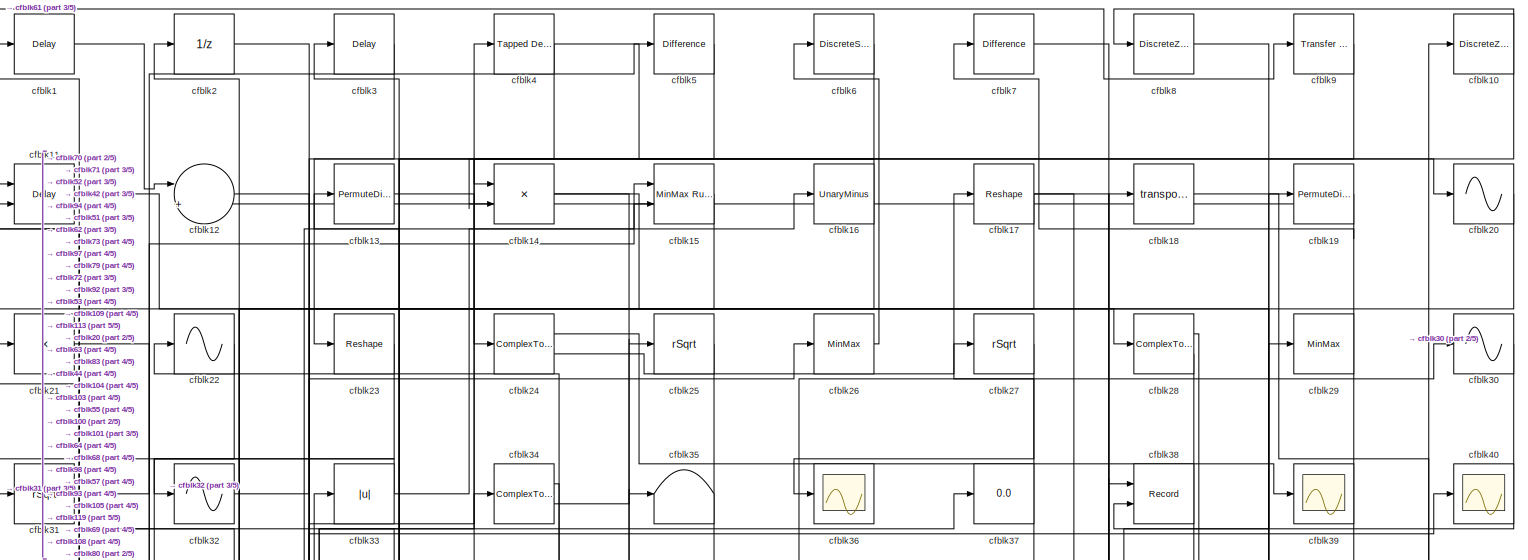
[diagram: root canvas - part 1/5, full width, top band]
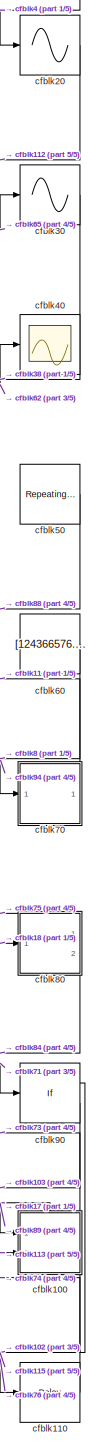
[diagram: root canvas - part 2/5, right side, full height]
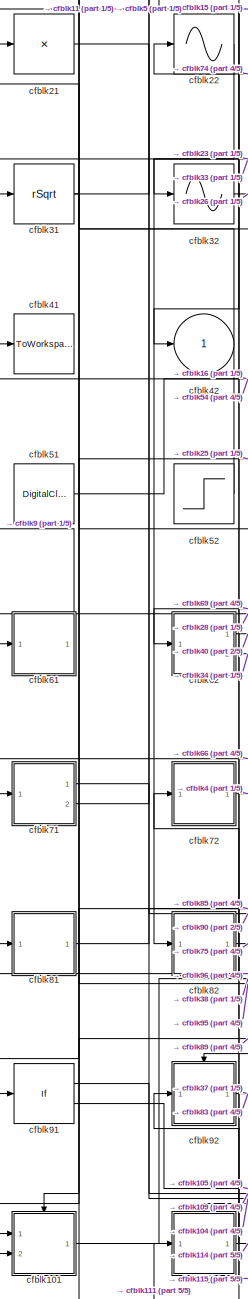
[diagram: root canvas - part 3/5, left side, full height]
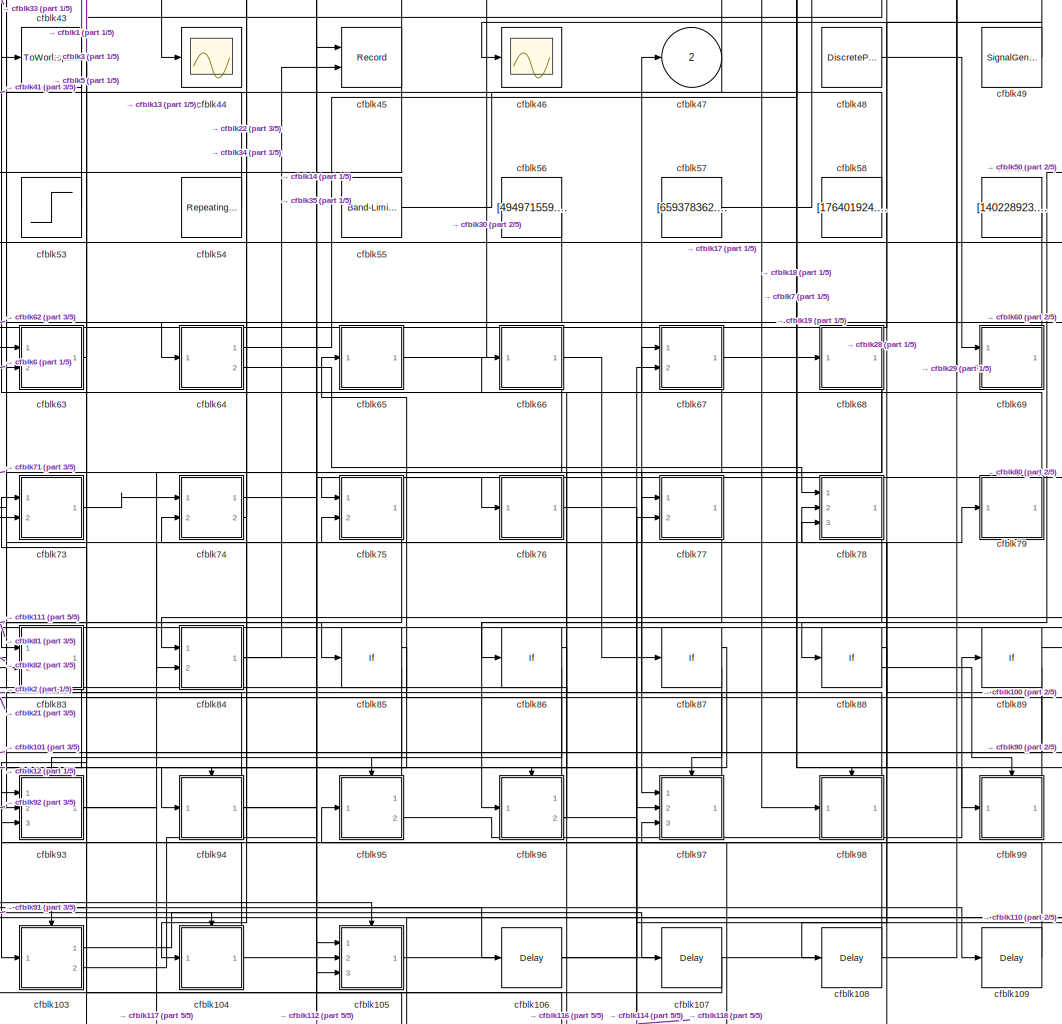
[diagram: root canvas - part 4/5, central region]
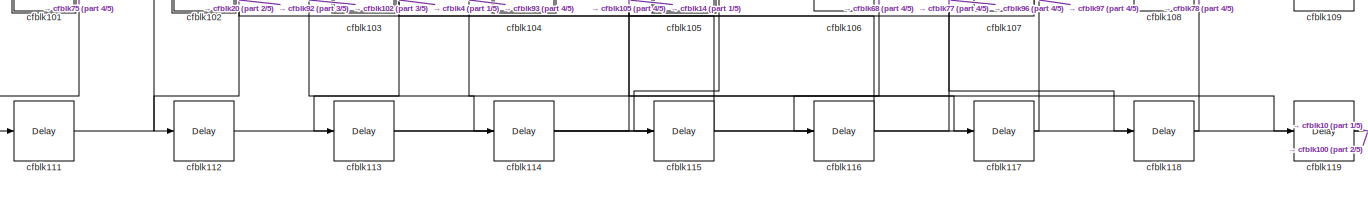
[diagram: root canvas - part 5/5, full width, bottom band]
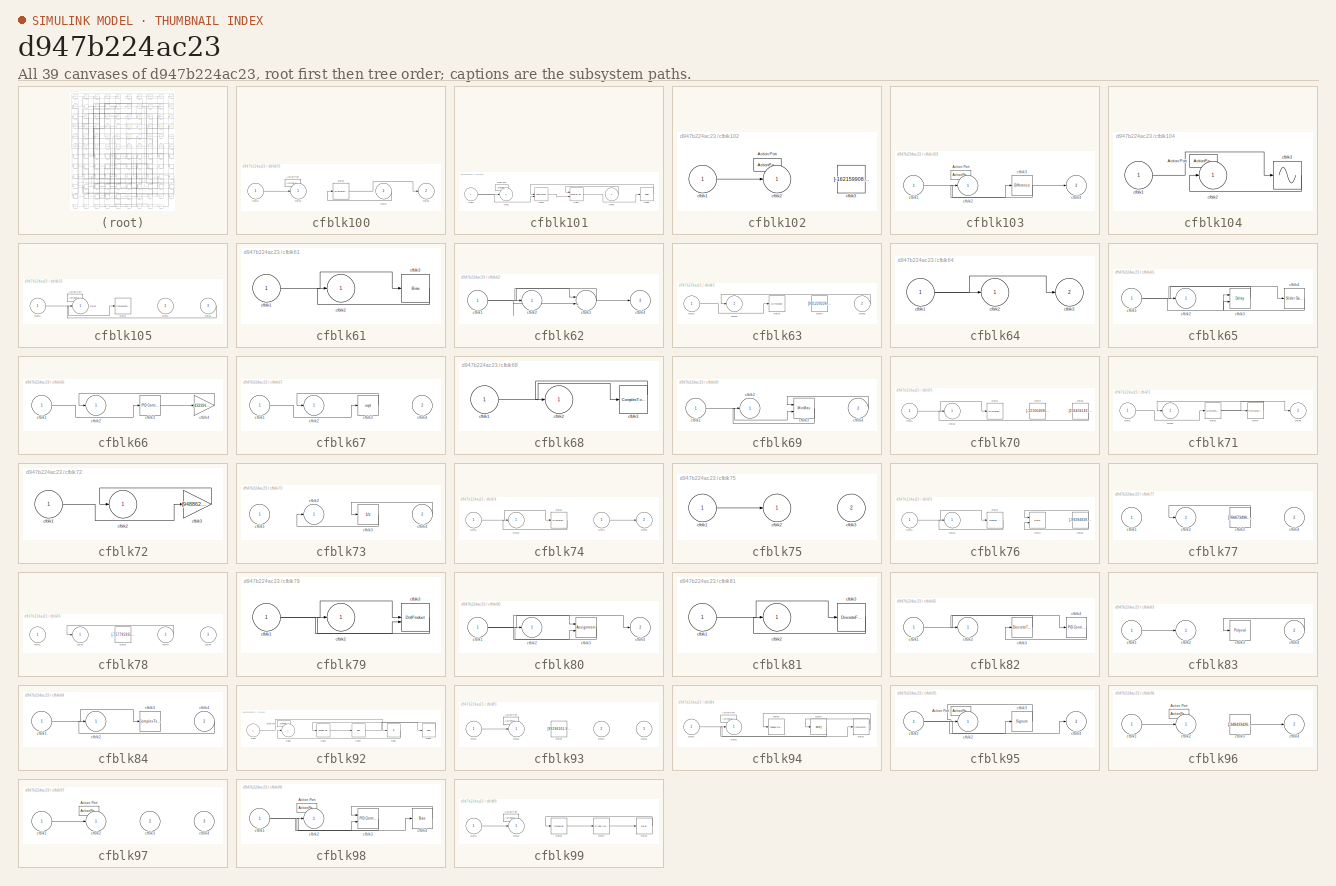
[diagram: thumbnail index - all 39 canvases of the model, root first then tree order]
MODEL slx_d947b224ac23
KIND model
CONFIG AbsTol = auto
CONFIG EnableMultiTasking = off
CONFIG FixedStep = auto
CONFIG MaxStep = auto
CONFIG MinStep = auto
CONFIG RelTol = 1e-3
CONFIG SampleTimeConstraint = Unconstrained
CONFIG SolverName = VariableStepAuto
CONFIG StartTime = 0.0
CONFIG StopTime = 10.0
BLOCK [Delay] cfblk1
  InputPortMap = u0
  Ports = [1, 1]
  SampleTime = 1
BLOCK [DiscreteZeroPole] cfblk10
  Gain = 1
  Poles = [0 0.5]
BLOCK [SubSystem] cfblk100
  Ports = [2, 2, 0, 0, 0, 0, 0, 1]
  RequestExecContextInheritance = off
  TreatAsAtomicUnit = on
BLOCK [ActionPort] cfblk100/Action Port
  ActionPortLabel = if(u1 >= 0)
BLOCK [Inport] cfblk100/cfblk1
BLOCK [Outport] cfblk100/cfblk2
BLOCK [DiscreteTransferFcn] cfblk100/cfblk3
  InputPortMap = u0
  Ports = [1, 1]
BLOCK [Inport] cfblk100/cfblk4
  Port = 2
BLOCK [Outport] cfblk100/cfblk5
  Port = 2
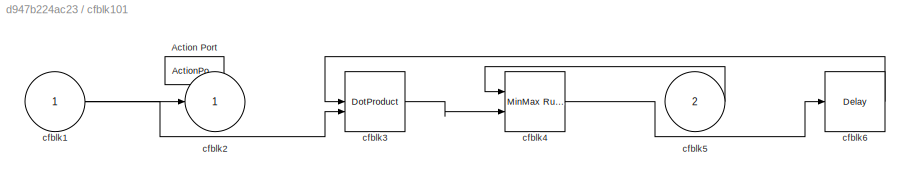
BLOCK [SubSystem] cfblk101
  Ports = [2, 1, 0, 0, 0, 0, 0, 1]
  RequestExecContextInheritance = off
  TreatAsAtomicUnit = on
BLOCK [ActionPort] cfblk101/Action Port
  ActionPortLabel = else
BLOCK [Inport] cfblk101/cfblk1
BLOCK [Outport] cfblk101/cfblk2
BLOCK [DotProduct] cfblk101/cfblk3
  OutDataTypeStr = Inherit: Inherit via internal rule
BLOCK [Reference] cfblk101/cfblk4  REF=simulink/Math
Operations/MinMax
Running
Resettable
  Ports = [2, 1]
  SourceBlock = simulink/Math\nOperations/MinMax\nRunning\nResettable
  SourceProductBaseCode = SL
  SourceType = MinMax Running Resettable
BLOCK [Inport] cfblk101/cfblk5
  Port = 2
BLOCK [Delay] cfblk101/cfblk6
  InputPortMap = u0
  Ports = [1, 1]
BLOCK [SubSystem] cfblk102
  Ports = [1, 1, 0, 0, 0, 0, 0, 1]
  RequestExecContextInheritance = off
  TreatAsAtomicUnit = on
BLOCK [ActionPort] cfblk102/Action Port
  ActionPortLabel = if(u1 >= 0)
BLOCK [Inport] cfblk102/cfblk1
BLOCK [Outport] cfblk102/cfblk2
BLOCK [Constant] cfblk102/cfblk3
  SampleTime = 1
  Value = [-162159908.679487]
BLOCK [SubSystem] cfblk103
  Ports = [1, 2, 0, 0, 0, 0, 0, 1]
  RequestExecContextInheritance = off
  TreatAsAtomicUnit = on
BLOCK [ActionPort] cfblk103/Action Port
  ActionPortLabel = else
BLOCK [Inport] cfblk103/cfblk1
BLOCK [Outport] cfblk103/cfblk2
BLOCK [Reference] cfblk103/cfblk3  REF=simulink/Discrete/Difference
  Ports = [1, 1]
  SourceBlock = simulink/Discrete/Difference
  SourceProductBaseCode = SL
  SourceType = Difference
BLOCK [Outport] cfblk103/cfblk4
  Port = 2
BLOCK [SubSystem] cfblk104
  Ports = [1, 1, 0, 0, 0, 0, 0, 1]
  RequestExecContextInheritance = off
  TreatAsAtomicUnit = on
BLOCK [ActionPort] cfblk104/Action Port
  ActionPortLabel = if(u1 >= 0)
BLOCK [Inport] cfblk104/cfblk1
BLOCK [Outport] cfblk104/cfblk2
BLOCK [Sin] cfblk104/cfblk3
  Ports = [1, 1]
  SampleTime = 0
  TimeSource = Use external signal
BLOCK [SubSystem] cfblk105
  Ports = [3, 1, 0, 0, 0, 0, 0, 1]
  RequestExecContextInheritance = off
  TreatAsAtomicUnit = on
BLOCK [ActionPort] cfblk105/Action Port
  ActionPortLabel = else
BLOCK [Inport] cfblk105/cfblk1
BLOCK [Outport] cfblk105/cfblk2
BLOCK [ComplexToRealImag] cfblk105/cfblk3
  Ports = [1, 2]
BLOCK [Inport] cfblk105/cfblk4
  Port = 2
BLOCK [Inport] cfblk105/cfblk5
  Port = 3
BLOCK [Delay] cfblk106
  InputPortMap = u0
  Ports = [1, 1]
  SampleTime = 1
BLOCK [Delay] cfblk107
  InputPortMap = u0
  Ports = [1, 1]
  SampleTime = 1
BLOCK [Delay] cfblk108
  InputPortMap = u0
  Ports = [1, 1]
  SampleTime = 1
BLOCK [Delay] cfblk109
  InputPortMap = u0
  Ports = [1, 1]
  SampleTime = 1
BLOCK [Delay] cfblk11
  DelayLengthSource = Input port
  InputPortMap = u0,p1
  Ports = [2, 1]
  SampleTime = 1
BLOCK [Delay] cfblk110
  InputPortMap = u0
  Ports = [1, 1]
  SampleTime = 1
BLOCK [Delay] cfblk111
  InputPortMap = u0
  Ports = [1, 1]
  SampleTime = 1
BLOCK [Delay] cfblk112
  InputPortMap = u0
  Ports = [1, 1]
  SampleTime = 1
BLOCK [Delay] cfblk113
  InputPortMap = u0
  Ports = [1, 1]
  SampleTime = 1
BLOCK [Delay] cfblk114
  InputPortMap = u0
  Ports = [1, 1]
  SampleTime = 1
BLOCK [Delay] cfblk115
  InputPortMap = u0
  Ports = [1, 1]
  SampleTime = 1
BLOCK [Delay] cfblk116
  InputPortMap = u0
  Ports = [1, 1]
  SampleTime = 1
BLOCK [Delay] cfblk117
  InputPortMap = u0
  Ports = [1, 1]
  SampleTime = 1
BLOCK [Delay] cfblk118
  InputPortMap = u0
  Ports = [1, 1]
  SampleTime = 1
BLOCK [Delay] cfblk119
  InputPortMap = u0
  Ports = [1, 1]
  SampleTime = 1
BLOCK [Sum] cfblk12
  Inputs = |++
  Ports = [2, 1]
BLOCK [PermuteDimensions] cfblk13
BLOCK [Product] cfblk14
  Ports = [2, 1]
BLOCK [Reference] cfblk15  REF=simulink/Math
Operations/MinMax
Running
Resettable
  Ports = [2, 1]
  SourceBlock = simulink/Math\nOperations/MinMax\nRunning\nResettable
  SourceProductBaseCode = SL
  SourceType = MinMax Running Resettable
BLOCK [UnaryMinus] cfblk16
BLOCK [Reshape] cfblk17
  Ports = [1, 1]
BLOCK [Math] cfblk18
  Operator = transpose
  Ports = [1, 1]
BLOCK [PermuteDimensions] cfblk19
BLOCK [UnitDelay] cfblk2
  HasFrameUpgradeWarning = on
BLOCK [Sin] cfblk20
  Ports = [1, 1]
  SampleTime = 0
  TimeSource = Use external signal
BLOCK [Product] cfblk21
  Inputs = *
  Ports = [1, 1]
BLOCK [Sin] cfblk22
  Ports = [1, 1]
  SampleTime = 0
  TimeSource = Use external signal
BLOCK [Reshape] cfblk23
  Ports = [1, 1]
BLOCK [ComplexToMagnitudeAngle] cfblk24
  Ports = [1, 2]
BLOCK [Sqrt] cfblk25
  AlgorithmType = Newton-Raphson
  Operator = rSqrt
BLOCK [MinMax] cfblk26
  Function = max
  Ports = [1, 1]
BLOCK [Sqrt] cfblk27
  AlgorithmType = Newton-Raphson
  Operator = rSqrt
BLOCK [ComplexToMagnitudeAngle] cfblk28
  Ports = [1, 2]
BLOCK [MinMax] cfblk29
  Ports = [1, 1]
BLOCK [Delay] cfblk3
  InputPortMap = u0
  Ports = [1, 1]
  SampleTime = 1
BLOCK [Sin] cfblk30
  Ports = [1, 1]
  SampleTime = 0
  TimeSource = Use external signal
BLOCK [Sqrt] cfblk31
  AlgorithmType = Newton-Raphson
  Operator = rSqrt
BLOCK [Sin] cfblk32
  Ports = [1, 1]
  SampleTime = 0
  TimeSource = Use external signal
BLOCK [Abs] cfblk33
  SaturateOnIntegerOverflow = off
BLOCK [ComplexToMagnitudeAngle] cfblk34
  Ports = [1, 2]
BLOCK [Terminator] cfblk35
BLOCK [Scope] cfblk36
  Floating = off
  NumInputPorts = 1
  Ports = [1]
BLOCK [Display] cfblk37
  Decimation = 1
  Ports = [1]
BLOCK [Record] cfblk38
  CompatibilityTag = XY
  FileSettingsInternal = {"entries":[{"content":{"excelSettings":{"content":{},"type":"Streamout.ExcelSettings"}},"type":"Streamout.FileSettingStorage","uuid":"11336398-6d51-4f3b-8d62-29296b9ae9b3"}],"packageUris":["http://schema.mathworks.com/mf0/streamout_blocks/R2020a"],"version":"1.0"}
  Layout = [1 1]
  Ports = [2]
  SignalsInternal = {"entries":[{"content":{"signals":[{"content":{"blockPath":["sampleModel235/cfblk38"],"channel":[],"dimensions":[1],"domain":"sampleModel235/cfblk38","lineColor":"#a2142f","plots":[1],"port":1,"sid":[""],"signalID":9263,"signalName":"cfblk101"},"type":"RecordBlkView.Signal","uuid":"63c3850a-55ea-46c7-aea2-e643b16b634b"},{"content":{"blockPath":["sampleModel235/cfblk38"],"channel":[],"dimensions":[...<+384ch>
  VisualizationBindings = {"xyplotplugin":{"info":[{"series":[{"bindingParametersList":[{"parameter":"X-Axis","signalID":9263,"signalName":"cfblk101"},{"parameter":"Y-Axis","signalID":9267,"signalName":"cfblk30"}],"seriesID":30601}],"subplotID":1}]}}
BLOCK [Scope] cfblk39
  Floating = off
  NumInputPorts = 1
  Ports = [1]
BLOCK [Reference] cfblk4  REF=simulink/Discrete/Tapped Delay
  Ports = [1, 1]
  SourceBlock = simulink/Discrete/Tapped Delay
  SourceProductBaseCode = SL
  SourceType = Tapped Delay Line
BLOCK [Scope] cfblk40
  Floating = off
  NumInputPorts = 1
  Ports = [1]
BLOCK [ToWorkspace] cfblk41
  FixptAsFi = on
  MaxDataPoints = inf
  Ports = [1]
  SampleTime = -1
  SaveFormat = Timeseries
  VariableName = vjgogzo
BLOCK [Outport] cfblk42
BLOCK [ToWorkspace] cfblk43
  FixptAsFi = on
  MaxDataPoints = inf
  Ports = [1]
  SampleTime = -1
  SaveFormat = Timeseries
  VariableName = marzvud
BLOCK [Scope] cfblk44
  Floating = off
  NumInputPorts = 1
  Ports = [1]
BLOCK [Record] cfblk45
  CompatibilityTag = XY
  FileSettingsInternal = {"entries":[{"content":{"excelSettings":{"content":{},"type":"Streamout.ExcelSettings"}},"type":"Streamout.FileSettingStorage","uuid":"599320f1-be0e-48c2-8f03-a9a55e95d92d"}],"packageUris":["http://schema.mathworks.com/mf0/streamout_blocks/R2020a"],"version":"1.0"}
  Layout = [1 1]
  Ports = [2]
  SignalsInternal = {"entries":[{"content":{"signals":[{"content":{"blockPath":["sampleModel235/cfblk45"],"channel":[],"dimensions":[1],"domain":"sampleModel235/cfblk45","lineColor":"#a2142f","plots":[1],"port":1,"sid":[""],"signalID":9271,"signalName":"cfblk84"},"type":"RecordBlkView.Signal","uuid":"f68cf5d5-64ff-4d75-8381-95ab246270b4"},{"content":{"blockPath":["sampleModel235/cfblk45"],"channel":[],"dimensions":[1...<+383ch>
  VisualizationBindings = {"xyplotplugin":{"info":[{"series":[{"bindingParametersList":[{"parameter":"X-Axis","signalID":9271,"signalName":"cfblk84"},{"parameter":"Y-Axis","signalID":9275,"signalName":"cfblk84"}],"seriesID":14377}],"subplotID":1}]}}
BLOCK [Scope] cfblk46
  Floating = off
  NumInputPorts = 1
  Ports = [1]
BLOCK [Outport] cfblk47
  Port = 2
BLOCK [DiscretePulseGenerator] cfblk48
  Amplitude = [993990205.841639]
  Period = [41434692.825303]
  PhaseDelay = [9.000000]
  Ports = [0, 1]
  PulseType = Time based
  PulseWidth = 5
BLOCK [SignalGenerator] cfblk49
  Amplitude = [-618305415.927345]
  Ports = [0, 1]
  WaveForm = sawtooth
BLOCK [Reference] cfblk5  REF=simulink/Discrete/Difference
  Ports = [1, 1]
  SourceBlock = simulink/Discrete/Difference
  SourceProductBaseCode = SL
  SourceType = Difference
BLOCK [Reference] cfblk50  REF=simulink/Sources/Repeating
Sequence
Interpolated
  Ports = [0, 1]
  SourceBlock = simulink/Sources/Repeating\nSequence\nInterpolated
  SourceProductBaseCode = SL
  SourceType = Repeating Sequence Interpolated
BLOCK [DigitalClock] cfblk51
BLOCK [Step] cfblk52
  After = [-744239558.640982]
  Before = [-898683375.767057]
  SampleTime = 0
  Time = [2.000000]
BLOCK [Step] cfblk53
  After = [255511984.528570]
  Before = [-372375495.152986]
  SampleTime = 0
  Time = [28.000000]
BLOCK [Reference] cfblk54  REF=simulink/Sources/Repeating
Sequence
  Ports = [0, 1]
  SourceBlock = simulink/Sources/Repeating\nSequence
  SourceProductBaseCode = SL
  SourceType = Repeating table
BLOCK [Reference] cfblk55  REF=simulink/Sources/Band-Limited
White Noise
  Ports = [0, 1]
  SourceBlock = simulink/Sources/Band-Limited\nWhite Noise
  SourceProductBaseCode = SL
  SourceType = Band-Limited White Noise.
BLOCK [Constant] cfblk56
  SampleTime = 1
  Value = [494971559.399289]
BLOCK [Constant] cfblk57
  SampleTime = 1
  Value = [659378362.848912]
BLOCK [Constant] cfblk58
  SampleTime = 1
  Value = [176401924.091886]
BLOCK [Constant] cfblk59
  SampleTime = 1
  Value = [140228923.076244]
BLOCK [DiscreteStateSpace] cfblk6
BLOCK [Constant] cfblk60
  SampleTime = 1
  Value = [124366576.874203]
BLOCK [SubSystem] cfblk61
  Ports = [1, 1]
  RequestExecContextInheritance = off
BLOCK [Inport] cfblk61/cfblk1
BLOCK [Outport] cfblk61/cfblk2
BLOCK [Bias] cfblk61/cfblk3
  Bias = [-453538198.164832]
  SaturateOnIntegerOverflow = off
BLOCK [SubSystem] cfblk62
  Ports = [1, 2]
  RequestExecContextInheritance = off
BLOCK [Inport] cfblk62/cfblk1
BLOCK [Outport] cfblk62/cfblk2
BLOCK [Sum] cfblk62/cfblk3
  Inputs = |++
  Ports = [2, 1]
BLOCK [Outport] cfblk62/cfblk4
  Port = 2
BLOCK [SubSystem] cfblk63
  Ports = [2, 1]
  RequestExecContextInheritance = off
BLOCK [Inport] cfblk63/cfblk1
BLOCK [Outport] cfblk63/cfblk2
BLOCK [Reference] cfblk63/cfblk3  REF=simulink/Discrete/Difference
  Ports = [1, 1]
  SourceBlock = simulink/Discrete/Difference
  SourceProductBaseCode = SL
  SourceType = Difference
BLOCK [Constant] cfblk63/cfblk4
  SampleTime = 1
  Value = [941229226.738042]
BLOCK [Inport] cfblk63/cfblk5
  Port = 2
BLOCK [SubSystem] cfblk64
  Ports = [1, 2]
  RequestExecContextInheritance = off
BLOCK [Inport] cfblk64/cfblk1
BLOCK [Outport] cfblk64/cfblk2
BLOCK [Outport] cfblk64/cfblk3
  Port = 2
BLOCK [SubSystem] cfblk65
  Ports = [1, 1]
  RequestExecContextInheritance = off
BLOCK [Inport] cfblk65/cfblk1
BLOCK [Outport] cfblk65/cfblk2
BLOCK [Delay] cfblk65/cfblk3
  DelayLengthSource = Input port
  InputPortMap = u0,p1
  Ports = [2, 1]
  SampleTime = 1
BLOCK [Reference] cfblk65/cfblk4  REF=simulink/Math
Operations/Slider
Gain
  Ports = [1, 1]
  SourceBlock = simulink/Math\nOperations/Slider\nGain
  SourceProductBaseCode = SL
  SourceType = Slider Gain
BLOCK [SubSystem] cfblk66
  Ports = [1, 1]
  RequestExecContextInheritance = off
BLOCK [Inport] cfblk66/cfblk1
BLOCK [Outport] cfblk66/cfblk2
BLOCK [Reference] cfblk66/cfblk3  REF=slpidlib/PID Controller
  Ports = [1, 1]
  SourceBlock = slpidlib/PID Controller
  SourceProductBaseCode = SL
  SourceType = PID 1dof
BLOCK [Gain] cfblk66/cfblk4
  Gain = [432391618.383563]
BLOCK [SubSystem] cfblk67
  Ports = [2, 1]
  RequestExecContextInheritance = off
BLOCK [Inport] cfblk67/cfblk1
BLOCK [Outport] cfblk67/cfblk2
BLOCK [Sqrt] cfblk67/cfblk3
BLOCK [Inport] cfblk67/cfblk4
  Port = 2
BLOCK [SubSystem] cfblk68
  Ports = [1, 1]
  RequestExecContextInheritance = off
BLOCK [Inport] cfblk68/cfblk1
BLOCK [Outport] cfblk68/cfblk2
BLOCK [ComplexToRealImag] cfblk68/cfblk3
  Ports = [1, 2]
BLOCK [SubSystem] cfblk69
  Ports = [2, 1]
  RequestExecContextInheritance = off
BLOCK [Inport] cfblk69/cfblk1
BLOCK [Outport] cfblk69/cfblk2
BLOCK [MinMax] cfblk69/cfblk3
  Inputs = 2
  Ports = [2, 1]
BLOCK [Inport] cfblk69/cfblk4
  Port = 2
BLOCK [Reference] cfblk7  REF=simulink/Discrete/Difference
  Ports = [1, 1]
  SourceBlock = simulink/Discrete/Difference
  SourceProductBaseCode = SL
  SourceType = Difference
BLOCK [SubSystem] cfblk70
  Ports = [1, 1]
  RequestExecContextInheritance = off
BLOCK [Inport] cfblk70/cfblk1
BLOCK [Outport] cfblk70/cfblk2
BLOCK [DiscreteZeroPole] cfblk70/cfblk3
  Gain = 1
  Poles = [0 0.5]
BLOCK [Constant] cfblk70/cfblk4
  SampleTime = 1
  Value = [-121664696.858403]
BLOCK [Constant] cfblk70/cfblk5
  SampleTime = 1
  Value = [236404182.223151]
BLOCK [SubSystem] cfblk71
  Ports = [1, 2]
  RequestExecContextInheritance = off
BLOCK [Inport] cfblk71/cfblk1
BLOCK [Outport] cfblk71/cfblk2
BLOCK [DiscreteStateSpace] cfblk71/cfblk3
BLOCK [PermuteDimensions] cfblk71/cfblk4
BLOCK [Outport] cfblk71/cfblk5
  Port = 2
BLOCK [SubSystem] cfblk72
  Ports = [1, 1]
  RequestExecContextInheritance = off
BLOCK [Inport] cfblk72/cfblk1
BLOCK [Outport] cfblk72/cfblk2
BLOCK [Gain] cfblk72/cfblk3
  Gain = [948862798.807821]
BLOCK [SubSystem] cfblk73
  Ports = [2, 1]
  RequestExecContextInheritance = off
BLOCK [Inport] cfblk73/cfblk1
BLOCK [Outport] cfblk73/cfblk2
BLOCK [UnitDelay] cfblk73/cfblk3
  HasFrameUpgradeWarning = on
BLOCK [Inport] cfblk73/cfblk4
  Port = 2
BLOCK [SubSystem] cfblk74
  Ports = [2, 2]
  RequestExecContextInheritance = off
BLOCK [Inport] cfblk74/cfblk1
BLOCK [Outport] cfblk74/cfblk2
BLOCK [DiscreteFilter] cfblk74/cfblk3
  InputPortMap = u0
  Ports = [1, 1]
  SampleTime = 1
BLOCK [Inport] cfblk74/cfblk4
  Port = 2
BLOCK [Outport] cfblk74/cfblk5
  Port = 2
BLOCK [SubSystem] cfblk75
  Ports = [2, 1]
  RequestExecContextInheritance = off
BLOCK [Inport] cfblk75/cfblk1
BLOCK [Outport] cfblk75/cfblk2
BLOCK [Inport] cfblk75/cfblk3
  Port = 2
BLOCK [SubSystem] cfblk76
  Ports = [1, 1]
  RequestExecContextInheritance = off
BLOCK [Inport] cfblk76/cfblk1
BLOCK [Outport] cfblk76/cfblk2
BLOCK [Reference] cfblk76/cfblk3  REF=simulink/Discrete/Transfer Fcn
Real Zero
  Ports = [1, 1]
  SourceBlock = simulink/Discrete/Transfer Fcn\nReal Zero
  SourceProductBaseCode = SL
  SourceType = Transfer Fcn Real Zero
BLOCK [Delay] cfblk76/cfblk4
  InputPortMap = u0,e6
  Ports = [2, 1]
  SampleTime = 1
  ShowEnablePort = on
BLOCK [Constant] cfblk76/cfblk5
  SampleTime = 1
  Value = [-99394838.353341]
BLOCK [SubSystem] cfblk77
  Ports = [2, 1]
  RequestExecContextInheritance = off
BLOCK [Inport] cfblk77/cfblk1
BLOCK [Outport] cfblk77/cfblk2
BLOCK [Constant] cfblk77/cfblk3
  SampleTime = 1
  Value = [766673496.063240]
BLOCK [Inport] cfblk77/cfblk4
  Port = 2
BLOCK [SubSystem] cfblk78
  Ports = [3, 1]
  RequestExecContextInheritance = off
BLOCK [Inport] cfblk78/cfblk1
BLOCK [Outport] cfblk78/cfblk2
BLOCK [Constant] cfblk78/cfblk3
  SampleTime = 1
  Value = [-757795935.160757]
BLOCK [Inport] cfblk78/cfblk4
  Port = 2
BLOCK [Inport] cfblk78/cfblk5
  Port = 3
BLOCK [SubSystem] cfblk79
  Ports = [1, 1]
  RequestExecContextInheritance = off
BLOCK [Inport] cfblk79/cfblk1
BLOCK [Outport] cfblk79/cfblk2
BLOCK [DotProduct] cfblk79/cfblk3
  OutDataTypeStr = Inherit: Inherit via internal rule
BLOCK [DiscreteZeroPole] cfblk8
  Gain = 1
  Poles = [0 0.5]
BLOCK [SubSystem] cfblk80
  Ports = [1, 2]
  RequestExecContextInheritance = off
BLOCK [Inport] cfblk80/cfblk1
BLOCK [Outport] cfblk80/cfblk2
BLOCK [Assignment] cfblk80/cfblk3
  DiagnosticForDimensions = Warning
  IndexOptions = Index vector (dialog)
  Indices = 1
  OutputSizes = 1
  Ports = [2, 1]
BLOCK [Outport] cfblk80/cfblk4
  Port = 2
BLOCK [SubSystem] cfblk81
  Ports = [1, 1]
  RequestExecContextInheritance = off
BLOCK [Inport] cfblk81/cfblk1
BLOCK [Outport] cfblk81/cfblk2
BLOCK [DiscreteFir] cfblk81/cfblk3
  InputPortMap = u0
  OutputPortMap = o0
  Ports = [1, 1]
  SampleTime = 1
BLOCK [SubSystem] cfblk82
  Ports = [1, 1]
  RequestExecContextInheritance = off
BLOCK [Inport] cfblk82/cfblk1
BLOCK [Outport] cfblk82/cfblk2
BLOCK [DiscreteTransferFcn] cfblk82/cfblk3
  InputPortMap = u0
  Ports = [1, 1]
  SampleTime = 1
BLOCK [Reference] cfblk82/cfblk4  REF=slpidlib/PID Controller
  Ports = [1, 1]
  SourceBlock = slpidlib/PID Controller
  SourceProductBaseCode = SL
  SourceType = PID 1dof
BLOCK [SubSystem] cfblk83
  Ports = [2, 1]
  RequestExecContextInheritance = off
BLOCK [Inport] cfblk83/cfblk1
BLOCK [Outport] cfblk83/cfblk2
BLOCK [Polyval] cfblk83/cfblk3
  Coefs = [ +2.081618890e-019, -1.441693666e-014, +4.719686976e-010, -8.536869453e-006, +1.621573104e-001, -8.087801117e+001 ]
BLOCK [Inport] cfblk83/cfblk4
  Port = 2
BLOCK [SubSystem] cfblk84
  Ports = [2, 1]
  RequestExecContextInheritance = off
BLOCK [Inport] cfblk84/cfblk1
BLOCK [Outport] cfblk84/cfblk2
BLOCK [ComplexToRealImag] cfblk84/cfblk3
  Ports = [1, 2]
BLOCK [Inport] cfblk84/cfblk4
  Port = 2
BLOCK [If] cfblk85
  IfExpression = u1 >= 0
  Ports = [1, 2]
  SampleTime = 1
BLOCK [If] cfblk86
  IfExpression = u1 >= 0
  Ports = [1, 2]
  SampleTime = 1
BLOCK [If] cfblk87
  IfExpression = u1 >= 0
  Ports = [1, 2]
  SampleTime = 1
BLOCK [If] cfblk88
  IfExpression = u1 >= 0
  Ports = [1, 2]
  SampleTime = 1
BLOCK [If] cfblk89
  IfExpression = u1 >= 0
  Ports = [1, 2]
  SampleTime = 1
BLOCK [Reference] cfblk9  REF=simulink/Discrete/Transfer Fcn
First Order
  Ports = [1, 1]
  SourceBlock = simulink/Discrete/Transfer Fcn\nFirst Order
  SourceProductBaseCode = SL
  SourceType = First Order Transfer Fcn
BLOCK [If] cfblk90
  IfExpression = u1 >= 0
  Ports = [1, 2]
  SampleTime = 1
BLOCK [If] cfblk91
  IfExpression = u1 >= 0
  Ports = [1, 2]
  SampleTime = 1
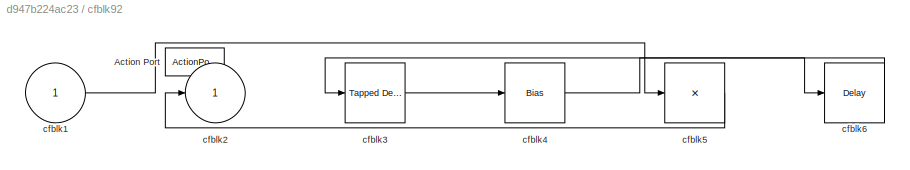
BLOCK [SubSystem] cfblk92
  Ports = [1, 1, 0, 0, 0, 0, 0, 1]
  RequestExecContextInheritance = off
  TreatAsAtomicUnit = on
BLOCK [ActionPort] cfblk92/Action Port
  ActionPortLabel = if(u1 >= 0)
BLOCK [Inport] cfblk92/cfblk1
BLOCK [Outport] cfblk92/cfblk2
BLOCK [Reference] cfblk92/cfblk3  REF=simulink/Discrete/Tapped Delay
  Ports = [1, 1]
  SourceBlock = simulink/Discrete/Tapped Delay
  SourceProductBaseCode = SL
  SourceType = Tapped Delay Line
BLOCK [Bias] cfblk92/cfblk4
  Bias = [972147291.551141]
  SaturateOnIntegerOverflow = off
BLOCK [Product] cfblk92/cfblk5
  Inputs = *
  Ports = [1, 1]
BLOCK [Delay] cfblk92/cfblk6
  InputPortMap = u0
  Ports = [1, 1]
BLOCK [SubSystem] cfblk93
  Ports = [3, 1, 0, 0, 0, 0, 0, 1]
  RequestExecContextInheritance = off
  TreatAsAtomicUnit = on
BLOCK [ActionPort] cfblk93/Action Port
  ActionPortLabel = else
BLOCK [Inport] cfblk93/cfblk1
BLOCK [Outport] cfblk93/cfblk2
BLOCK [Constant] cfblk93/cfblk3
  SampleTime = 1
  Value = [99196101.913529]
BLOCK [Inport] cfblk93/cfblk4
  Port = 2
BLOCK [Inport] cfblk93/cfblk5
  Port = 3
BLOCK [SubSystem] cfblk94
  Ports = [1, 1, 0, 0, 0, 0, 0, 1]
  RequestExecContextInheritance = off
  TreatAsAtomicUnit = on
BLOCK [ActionPort] cfblk94/Action Port
  ActionPortLabel = if(u1 >= 0)
BLOCK [Inport] cfblk94/cfblk1
BLOCK [Outport] cfblk94/cfblk2
BLOCK [Reference] cfblk94/cfblk3  REF=simulink/Discrete/Tapped Delay
  Ports = [1, 1]
  SourceBlock = simulink/Discrete/Tapped Delay
  SourceProductBaseCode = SL
  SourceType = Tapped Delay Line
BLOCK [Math] cfblk94/cfblk4
  Operator = conj
  Ports = [1, 1]
BLOCK [ComplexToMagnitudeAngle] cfblk94/cfblk5
  Ports = [1, 2]
BLOCK [SubSystem] cfblk95
  Ports = [1, 2, 0, 0, 0, 0, 0, 1]
  RequestExecContextInheritance = off
  TreatAsAtomicUnit = on
BLOCK [ActionPort] cfblk95/Action Port
  ActionPortLabel = else
BLOCK [Inport] cfblk95/cfblk1
BLOCK [Outport] cfblk95/cfblk2
BLOCK [Signum] cfblk95/cfblk3
BLOCK [Outport] cfblk95/cfblk4
  Port = 2
BLOCK [SubSystem] cfblk96
  Ports = [1, 2, 0, 0, 0, 0, 0, 1]
  RequestExecContextInheritance = off
  TreatAsAtomicUnit = on
BLOCK [ActionPort] cfblk96/Action Port
  ActionPortLabel = if(u1 >= 0)
BLOCK [Inport] cfblk96/cfblk1
BLOCK [Outport] cfblk96/cfblk2
BLOCK [Constant] cfblk96/cfblk3
  SampleTime = 1
  Value = [-348433426.404080]
BLOCK [Outport] cfblk96/cfblk4
  Port = 2
BLOCK [SubSystem] cfblk97
  Ports = [3, 1, 0, 0, 0, 0, 0, 1]
  RequestExecContextInheritance = off
  TreatAsAtomicUnit = on
BLOCK [ActionPort] cfblk97/Action Port
  ActionPortLabel = else
BLOCK [Inport] cfblk97/cfblk1
BLOCK [Outport] cfblk97/cfblk2
BLOCK [Inport] cfblk97/cfblk3
  Port = 2
BLOCK [Inport] cfblk97/cfblk4
  Port = 3
BLOCK [SubSystem] cfblk98
  Ports = [1, 1, 0, 0, 0, 0, 0, 1]
  RequestExecContextInheritance = off
  TreatAsAtomicUnit = on
BLOCK [ActionPort] cfblk98/Action Port
  ActionPortLabel = if(u1 >= 0)
BLOCK [Inport] cfblk98/cfblk1
BLOCK [Outport] cfblk98/cfblk2
BLOCK [Reference] cfblk98/cfblk3  REF=slpidlib/PID Controller (2DOF)
  Ports = [2, 1]
  SourceBlock = slpidlib/PID Controller (2DOF)
  SourceProductBaseCode = SL
  SourceType = PID 2dof
BLOCK [Bias] cfblk98/cfblk4
  Bias = [-92562294.972788]
  SaturateOnIntegerOverflow = off
BLOCK [SubSystem] cfblk99
  Ports = [1, 1, 0, 0, 0, 0, 0, 1]
  RequestExecContextInheritance = off
  TreatAsAtomicUnit = on
BLOCK [ActionPort] cfblk99/Action Port
  ActionPortLabel = else
BLOCK [Inport] cfblk99/cfblk1
BLOCK [Outport] cfblk99/cfblk2
BLOCK [Rounding] cfblk99/cfblk3
BLOCK [Reference] cfblk99/cfblk4  REF=simulink/Math
Operations/Slider
Gain
  Ports = [1, 1]
  SourceBlock = simulink/Math\nOperations/Slider\nGain
  SourceProductBaseCode = SL
  SourceType = Slider Gain
BLOCK [Delay] cfblk99/cfblk5
  InputPortMap = u0
  Ports = [1, 1]
LINE cfblk100/cfblk1:1 -> cfblk100/cfblk2:1
LINE cfblk100/cfblk3:1 -> cfblk100/cfblk5:1
LINE cfblk100/cfblk4:1 -> cfblk100/cfblk3:1
LINE cfblk100:1 -> cfblk73:1
LINE cfblk100:2 -> cfblk115:1
NET cfblk101/cfblk1:1 -> cfblk101/cfblk2:1, cfblk101/cfblk3:2
LINE cfblk101/cfblk3:1 -> cfblk101/cfblk4:2
LINE cfblk101/cfblk4:1 -> cfblk101/cfblk6:1
LINE cfblk101/cfblk5:1 -> cfblk101/cfblk4:1
LINE cfblk101/cfblk6:1 -> cfblk101/cfblk3:1
LINE cfblk101:1 -> cfblk38:1
LINE cfblk102/cfblk1:1 -> cfblk102/cfblk2:1
NET cfblk102:1 -> cfblk114:1, cfblk72:1
LINE cfblk103/cfblk1:1 -> cfblk103/cfblk3:1
NET cfblk103/cfblk3:1 -> cfblk103/cfblk2:1, cfblk103/cfblk4:1
LINE cfblk103:1 -> cfblk107:1
LINE cfblk103:2 -> cfblk35:1
LINE cfblk104/cfblk1:1 -> cfblk104/cfblk3:1
LINE cfblk104/cfblk3:1 -> cfblk104/cfblk2:1
NET cfblk104:1 -> cfblk67:1, cfblk93:2
LINE cfblk105/cfblk1:1 -> cfblk105/cfblk3:1
LINE cfblk105/cfblk5:1 -> cfblk105/cfblk2:1
LINE cfblk105:1 -> cfblk29:1
LINE cfblk106:1 -> cfblk67:2
LINE cfblk107:1 -> cfblk105:2
LINE cfblk108:1 -> cfblk95:1
LINE cfblk109:1 -> cfblk3:1
NET cfblk10:1 -> cfblk14:2, cfblk8:1
LINE cfblk110:1 -> cfblk74:2
LINE cfblk111:1 -> cfblk102:1
LINE cfblk112:1 -> cfblk105:1
LINE cfblk113:1 -> cfblk100:2
LINE cfblk114:1 -> cfblk77:2
LINE cfblk115:1 -> cfblk92:1
LINE cfblk116:1 -> cfblk93:3
LINE cfblk117:1 -> cfblk97:3
LINE cfblk118:1 -> cfblk78:3
LINE cfblk119:1 -> cfblk10:1
LINE cfblk11:1 -> cfblk28:1
LINE cfblk12:1 -> cfblk97:2
LINE cfblk13:1 -> cfblk44:1
NET cfblk14:1 -> cfblk119:1, cfblk69:2
LINE cfblk15:1 -> cfblk42:1
NET cfblk16:1 -> cfblk101:2, cfblk14:1
NET cfblk17:1 -> cfblk100:1, cfblk73:2, cfblk98:1
LINE cfblk18:1 -> cfblk80:1
LINE cfblk19:1 -> cfblk12:2
LINE cfblk1:1 -> cfblk12:1
LINE cfblk20:1 -> cfblk112:1
LINE cfblk21:1 -> cfblk109:1
LINE cfblk22:1 -> cfblk82:1
LINE cfblk23:1 -> cfblk31:1
LINE cfblk24:1 -> cfblk39:1
LINE cfblk24:2 -> cfblk27:1
LINE cfblk25:1 -> cfblk101:1
LINE cfblk26:1 -> cfblk6:1
LINE cfblk27:1 -> cfblk36:1
LINE cfblk28:1 -> cfblk61:1
LINE cfblk28:2 -> cfblk93:1
NET cfblk29:1 -> cfblk108:1, cfblk7:1
LINE cfblk2:1 -> cfblk63:1
LINE cfblk30:1 -> cfblk38:2
NET cfblk31:1 -> cfblk15:2, cfblk91:1
LINE cfblk32:1 -> cfblk26:1
NET cfblk33:1 -> cfblk15:1, cfblk32:1
LINE cfblk34:1 -> cfblk104:1
LINE cfblk34:2 -> cfblk25:1
LINE cfblk3:1 -> cfblk23:1
LINE cfblk48:1 -> cfblk69:1
LINE cfblk49:1 -> cfblk46:1
NET cfblk4:1 -> cfblk113:1, cfblk20:1
LINE cfblk50:1 -> cfblk88:1
LINE cfblk51:1 -> cfblk16:1
LINE cfblk52:1 -> cfblk11:2
LINE cfblk53:1 -> cfblk1:1
LINE cfblk54:1 -> cfblk41:1
LINE cfblk55:1 -> cfblk17:1
LINE cfblk56:1 -> cfblk64:1
LINE cfblk57:1 -> cfblk19:1
LINE cfblk58:1 -> cfblk43:1
LINE cfblk59:1 -> cfblk105:3
LINE cfblk5:1 -> cfblk83:1
LINE cfblk60:1 -> cfblk94:1
LINE cfblk61/cfblk1:1 -> cfblk61/cfblk3:1
LINE cfblk61/cfblk3:1 -> cfblk61/cfblk2:1
LINE cfblk61:1 -> cfblk9:1
NET cfblk62/cfblk1:1 -> cfblk62/cfblk3:1, cfblk62/cfblk3:2
NET cfblk62/cfblk3:1 -> cfblk62/cfblk2:1, cfblk62/cfblk4:1
LINE cfblk62:1 -> cfblk40:1
LINE cfblk62:2 -> cfblk34:1
LINE cfblk63/cfblk1:1 -> cfblk63/cfblk3:1
LINE cfblk63/cfblk5:1 -> cfblk63/cfblk2:1
LINE cfblk63:1 -> cfblk13:1
NET cfblk64/cfblk1:1 -> cfblk64/cfblk2:1, cfblk64/cfblk3:1
LINE cfblk64:1 -> cfblk18:1
LINE cfblk64:2 -> cfblk78:1
NET cfblk65/cfblk1:1 -> cfblk65/cfblk3:2, cfblk65/cfblk4:1
LINE cfblk65/cfblk3:1 -> cfblk65/cfblk2:1
LINE cfblk65/cfblk4:1 -> cfblk65/cfblk3:1
LINE cfblk65:1 -> cfblk30:1
LINE cfblk66/cfblk1:1 -> cfblk66/cfblk3:1
LINE cfblk66/cfblk3:1 -> cfblk66/cfblk4:1
LINE cfblk66/cfblk4:1 -> cfblk66/cfblk2:1
NET cfblk66:1 -> cfblk71:1, cfblk87:1
LINE cfblk67/cfblk1:1 -> cfblk67/cfblk3:1
LINE cfblk67/cfblk3:1 -> cfblk67/cfblk2:1
NET cfblk67:1 -> cfblk97:1, cfblk99:1
LINE cfblk68/cfblk1:1 -> cfblk68/cfblk3:1
LINE cfblk68/cfblk3:1 -> cfblk68/cfblk2:1
NET cfblk68:1 -> cfblk116:1, cfblk84:2
LINE cfblk69/cfblk1:1 -> cfblk69/cfblk3:2
LINE cfblk69/cfblk3:1 -> cfblk69/cfblk2:1
LINE cfblk69/cfblk4:1 -> cfblk69/cfblk3:1
LINE cfblk69:1 -> cfblk62:1
LINE cfblk6:1 -> cfblk63:2
LINE cfblk70/cfblk1:1 -> cfblk70/cfblk3:1
LINE cfblk70/cfblk5:1 -> cfblk70/cfblk2:1
LINE cfblk70:1 -> cfblk11:1
LINE cfblk71/cfblk1:1 -> cfblk71/cfblk3:1
NET cfblk71/cfblk3:1 -> cfblk71/cfblk4:1, cfblk71/cfblk5:1
LINE cfblk71/cfblk4:1 -> cfblk71/cfblk2:1
LINE cfblk71:1 -> cfblk90:1
LINE cfblk71:2 -> cfblk5:1
LINE cfblk72/cfblk1:1 -> cfblk72/cfblk3:1
LINE cfblk72/cfblk3:1 -> cfblk72/cfblk2:1
LINE cfblk72:1 -> cfblk4:1
LINE cfblk73/cfblk3:1 -> cfblk73/cfblk2:1
LINE cfblk73/cfblk4:1 -> cfblk73/cfblk3:1
LINE cfblk73:1 -> cfblk74:1
LINE cfblk74/cfblk1:1 -> cfblk74/cfblk3:1
LINE cfblk74/cfblk3:1 -> cfblk74/cfblk2:1
LINE cfblk74/cfblk4:1 -> cfblk74/cfblk5:1
LINE cfblk74:1 -> cfblk76:1
LINE cfblk74:2 -> cfblk22:1
LINE cfblk75/cfblk1:1 -> cfblk75/cfblk2:1
LINE cfblk75:1 -> cfblk111:1
LINE cfblk76/cfblk1:1 -> cfblk76/cfblk3:1
LINE cfblk76/cfblk3:1 -> cfblk76/cfblk2:1
NET cfblk76/cfblk5:1 -> cfblk76/cfblk4:1, cfblk76/cfblk4:2
LINE cfblk76:1 -> cfblk110:1
LINE cfblk77/cfblk3:1 -> cfblk77/cfblk2:1
LINE cfblk77:1 -> cfblk96:1
LINE cfblk78/cfblk4:1 -> cfblk78/cfblk2:1
LINE cfblk78:1 -> cfblk86:1
NET cfblk79/cfblk1:1 -> cfblk79/cfblk3:1, cfblk79/cfblk3:2
LINE cfblk79/cfblk3:1 -> cfblk79/cfblk2:1
LINE cfblk79:1 -> cfblk33:1
LINE cfblk7:1 -> cfblk68:1
NET cfblk80/cfblk1:1 -> cfblk80/cfblk3:1, cfblk80/cfblk3:2, cfblk80/cfblk4:1
LINE cfblk80/cfblk3:1 -> cfblk80/cfblk2:1
LINE cfblk80:1 -> cfblk75:1
LINE cfblk80:2 -> cfblk84:1
LINE cfblk81/cfblk1:1 -> cfblk81/cfblk3:1
LINE cfblk81/cfblk3:1 -> cfblk81/cfblk2:1
LINE cfblk81:1 -> cfblk85:1
LINE cfblk82/cfblk1:1 -> cfblk82/cfblk4:1
LINE cfblk82/cfblk3:1 -> cfblk82/cfblk2:1
LINE cfblk82/cfblk4:1 -> cfblk82/cfblk3:1
LINE cfblk82:1 -> cfblk75:2
LINE cfblk83/cfblk1:1 -> cfblk83/cfblk2:1
LINE cfblk83/cfblk4:1 -> cfblk83/cfblk3:1
LINE cfblk83:1 -> cfblk103:1
LINE cfblk84/cfblk1:1 -> cfblk84/cfblk3:1
LINE cfblk84/cfblk4:1 -> cfblk84/cfblk2:1
NET cfblk84:1 -> cfblk45:1, cfblk45:2
LINE cfblk85:1 -> cfblk92:ifaction
LINE cfblk85:2 -> cfblk93:ifaction
LINE cfblk86:1 -> cfblk94:ifaction
LINE cfblk86:2 -> cfblk95:ifaction
LINE cfblk87:1 -> cfblk96:ifaction
LINE cfblk87:2 -> cfblk97:ifaction
LINE cfblk88:1 -> cfblk98:ifaction
LINE cfblk88:2 -> cfblk99:ifaction
LINE cfblk89:1 -> cfblk100:ifaction
LINE cfblk89:2 -> cfblk101:ifaction
LINE cfblk8:1 -> cfblk70:1
LINE cfblk90:1 -> cfblk102:ifaction
LINE cfblk90:2 -> cfblk103:ifaction
LINE cfblk91:1 -> cfblk104:ifaction
LINE cfblk91:2 -> cfblk105:ifaction
LINE cfblk92/cfblk1:1 -> cfblk92/cfblk5:1
LINE cfblk92/cfblk3:1 -> cfblk92/cfblk4:1
LINE cfblk92/cfblk4:1 -> cfblk92/cfblk6:1
LINE cfblk92/cfblk5:1 -> cfblk92/cfblk2:1
LINE cfblk92/cfblk6:1 -> cfblk92/cfblk3:1
NET cfblk92:1 -> cfblk37:1, cfblk83:2
LINE cfblk93/cfblk1:1 -> cfblk93/cfblk2:1
NET cfblk93:1 -> cfblk117:1, cfblk79:1
LINE cfblk94/cfblk1:1 -> cfblk94/cfblk5:1
LINE cfblk94/cfblk4:1 -> cfblk94/cfblk2:1
LINE cfblk94/cfblk5:1 -> cfblk94/cfblk4:1
LINE cfblk94/cfblk5:2 -> cfblk94/cfblk3:1
NET cfblk94:1 -> cfblk106:1, cfblk2:1, cfblk77:1
NET cfblk95/cfblk1:1 -> cfblk95/cfblk3:1, cfblk95/cfblk4:1
LINE cfblk95/cfblk3:1 -> cfblk95/cfblk2:1
LINE cfblk95:1 -> cfblk21:1
LINE cfblk95:2 -> cfblk89:1
LINE cfblk96/cfblk1:1 -> cfblk96/cfblk2:1
LINE cfblk96/cfblk3:1 -> cfblk96/cfblk4:1
LINE cfblk96:1 -> cfblk65:1
NET cfblk96:2 -> cfblk118:1, cfblk81:1
LINE cfblk97/cfblk1:1 -> cfblk97/cfblk2:1
LINE cfblk97:1 -> cfblk47:1
NET cfblk98/cfblk1:1 -> cfblk98/cfblk3:2, cfblk98/cfblk4:1
LINE cfblk98/cfblk3:1 -> cfblk98/cfblk2:1
LINE cfblk98/cfblk4:1 -> cfblk98/cfblk3:1
LINE cfblk98:1 -> cfblk66:1
LINE cfblk99/cfblk1:1 -> cfblk99/cfblk2:1
LINE cfblk99/cfblk3:1 -> cfblk99/cfblk4:1
LINE cfblk99/cfblk4:1 -> cfblk99/cfblk5:1
LINE cfblk99/cfblk5:1 -> cfblk99/cfblk3:1
LINE cfblk99:1 -> cfblk78:2
LINE cfblk9:1 -> cfblk24:1
note: NET lines group one-source signal fan-out (src -> all destinations, sorted); 1:1 wires keep LINE
